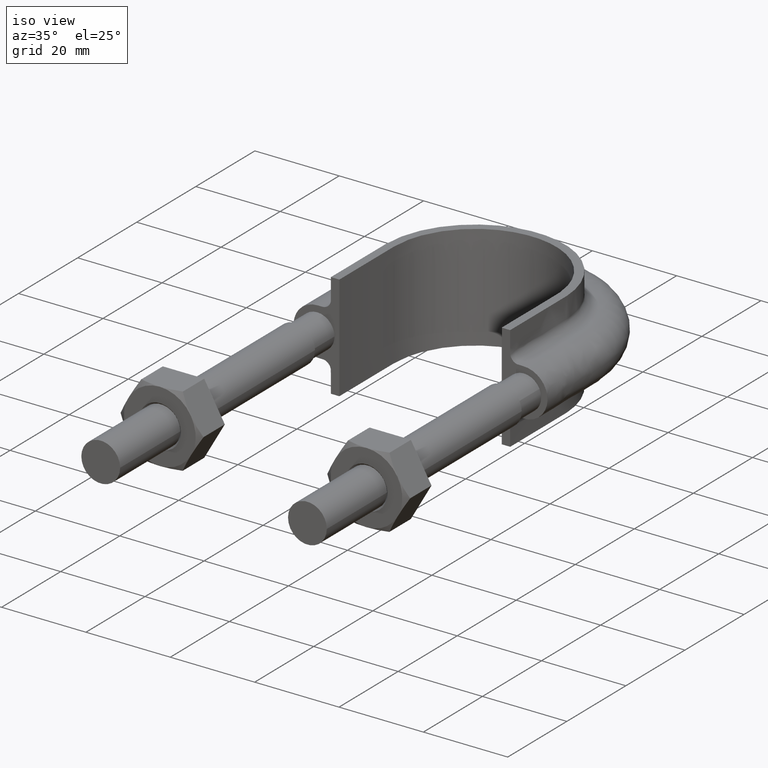
[diagram: clean part render]
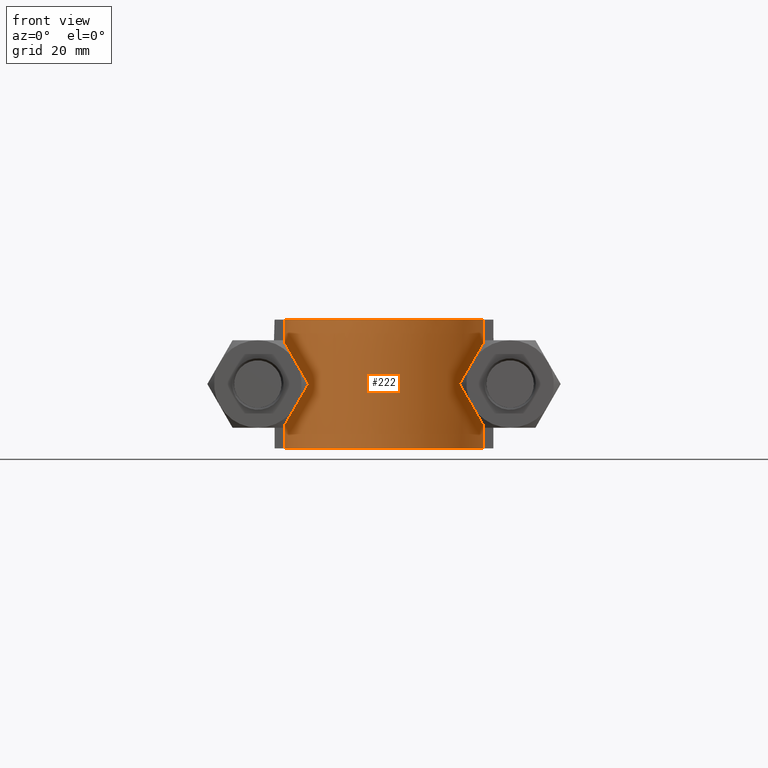
[diagram: tour spotlight — one face highlighted and labeled with its STEP entity id]
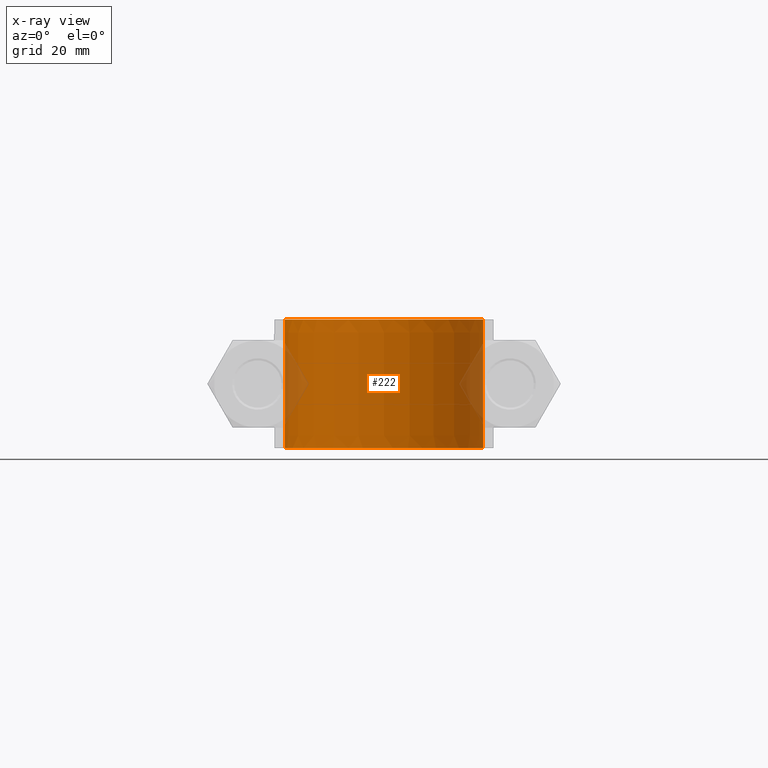
[diagram: x-ray of the same camera — body ghosted, this tour face saturated]
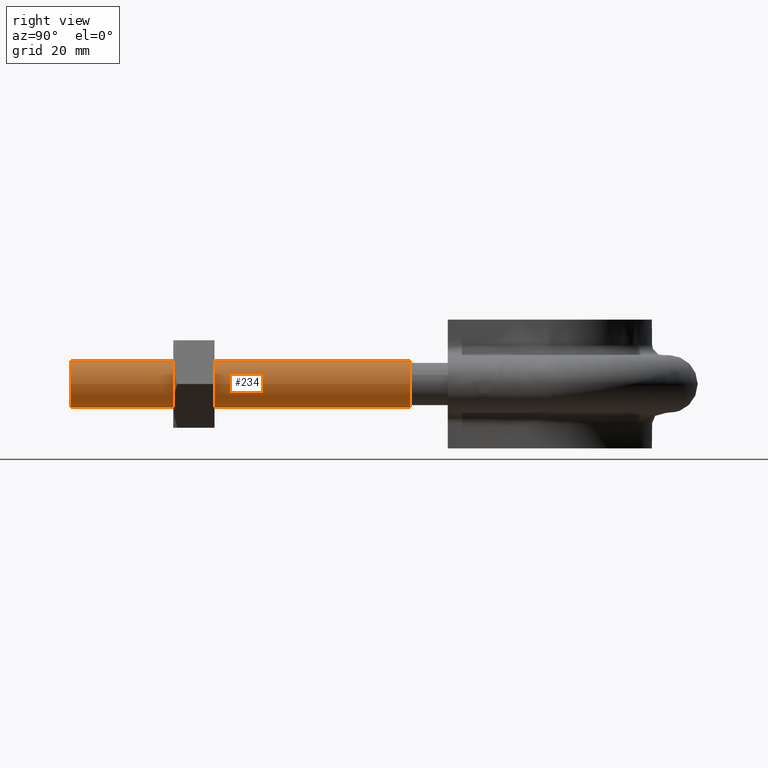
[diagram: tour spotlight — one face highlighted and labeled with its STEP entity id]
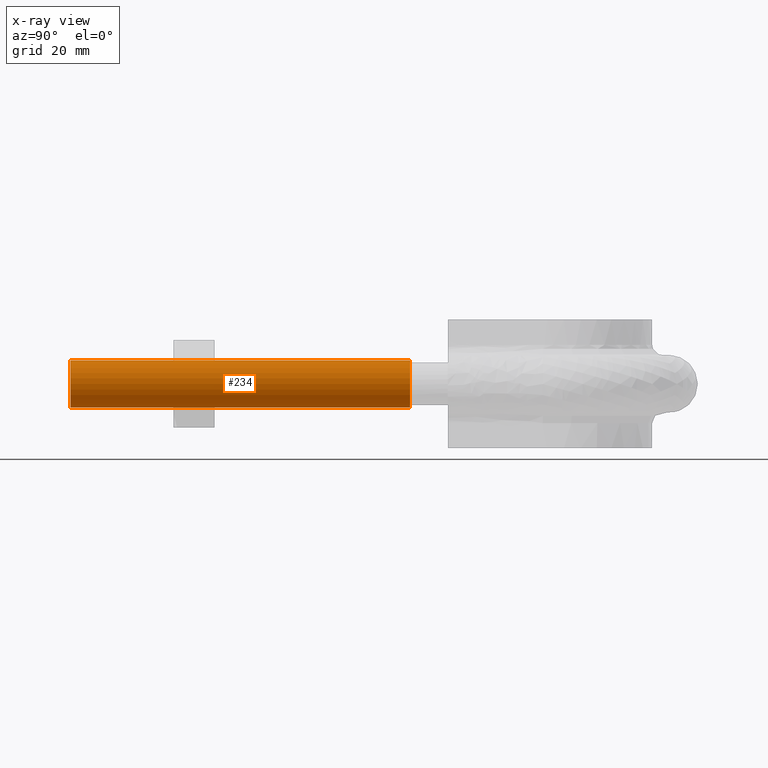
[diagram: x-ray of the same camera — body ghosted, this tour face saturated]
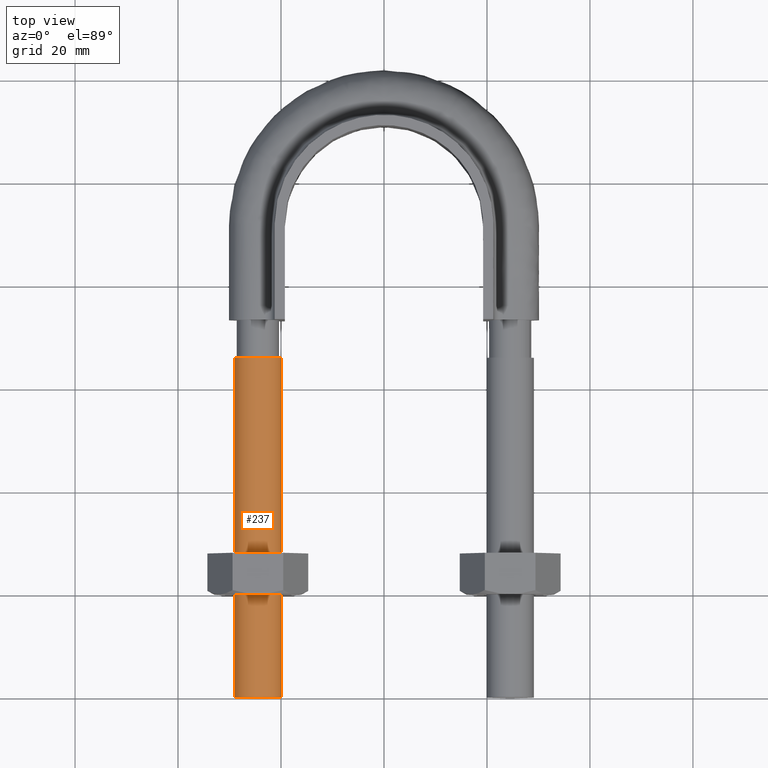
[diagram: tour spotlight — one face highlighted and labeled with its STEP entity id]
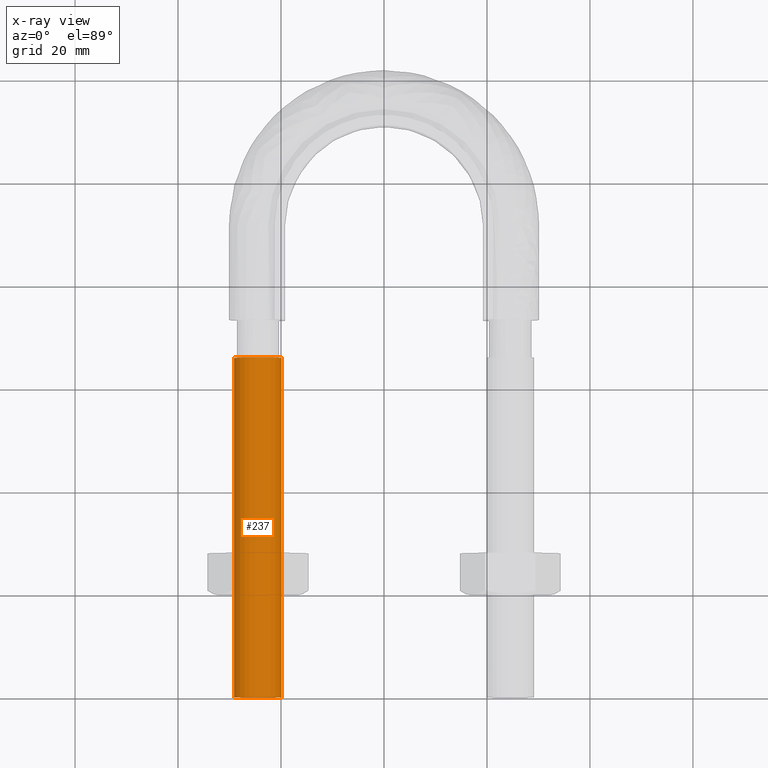
[diagram: x-ray of the same camera — body ghosted, this tour face saturated]
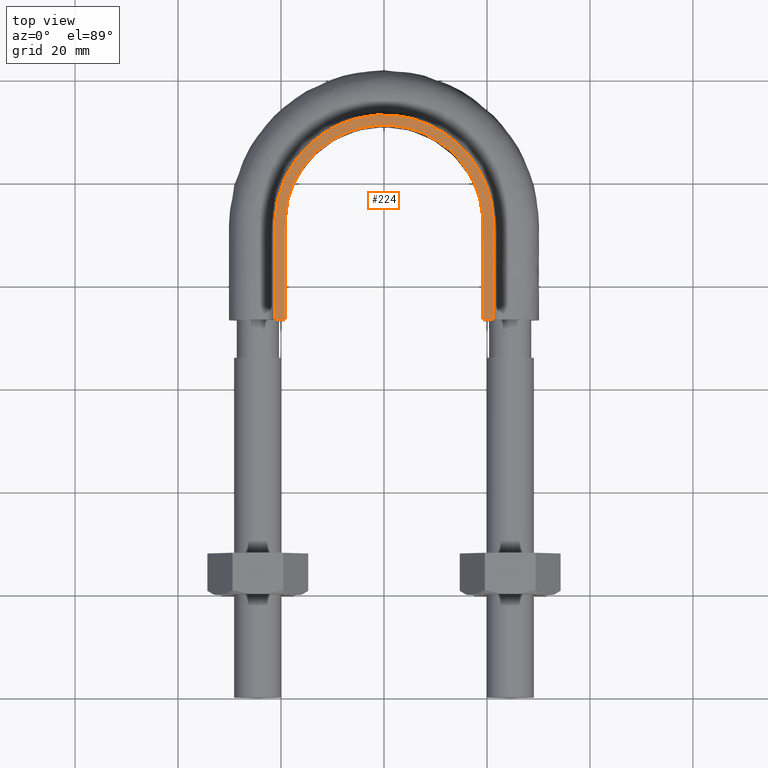
[diagram: tour spotlight — one face highlighted and labeled with its STEP entity id]
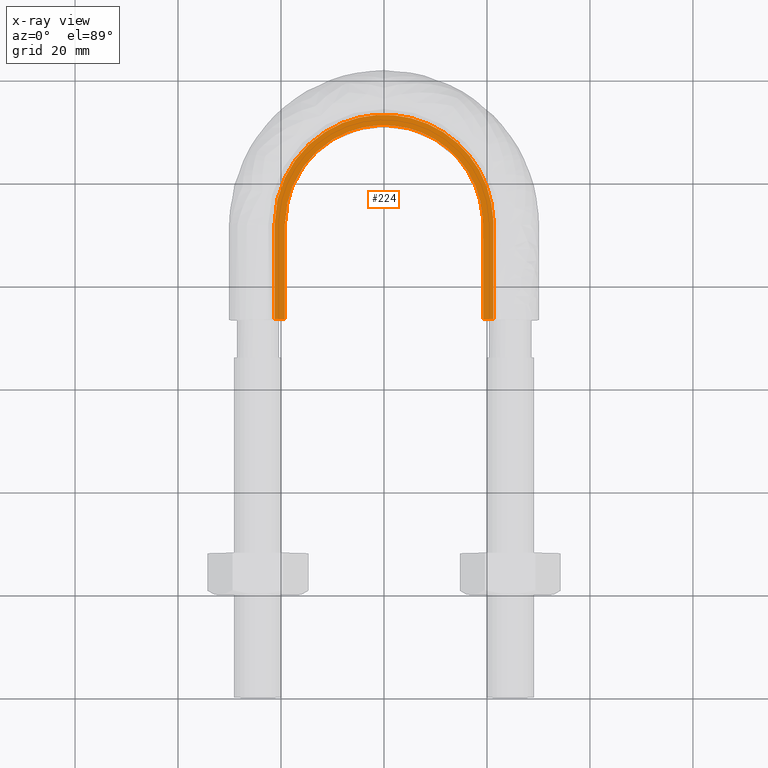
[diagram: x-ray of the same camera — body ghosted, this tour face saturated]
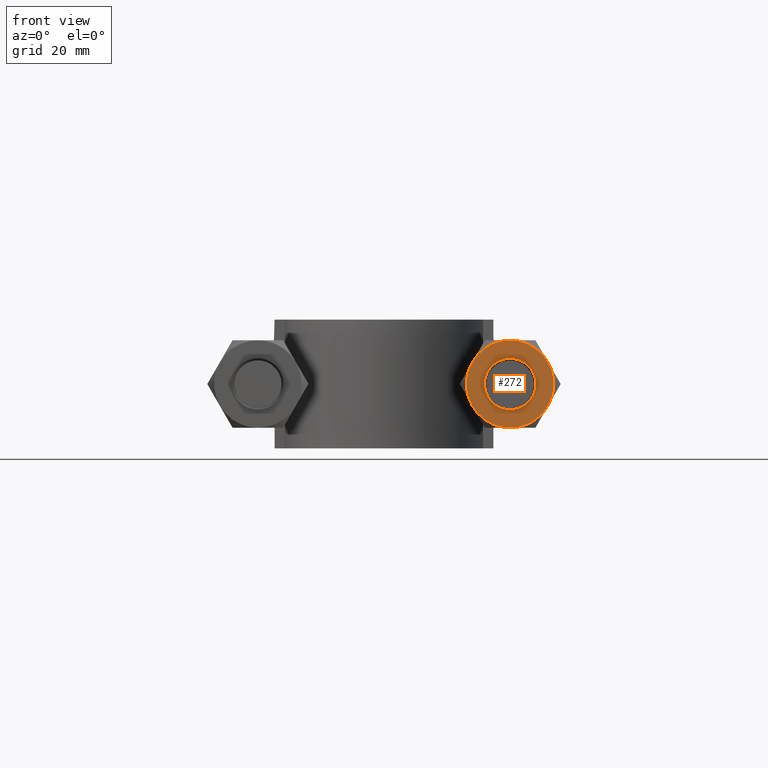
[diagram: tour spotlight — one face highlighted and labeled with its STEP entity id]
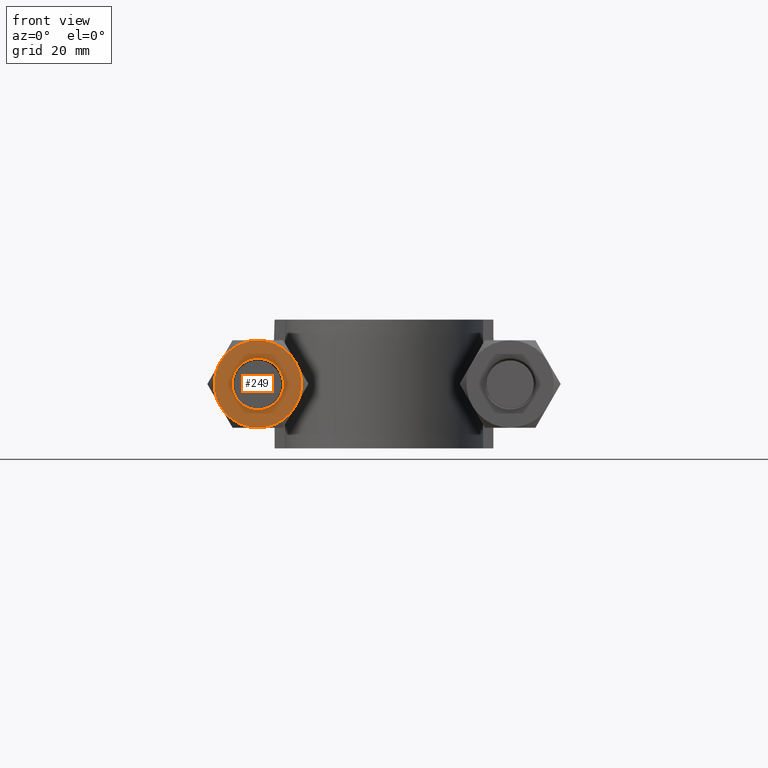
[diagram: tour spotlight — one face highlighted and labeled with its STEP entity id]
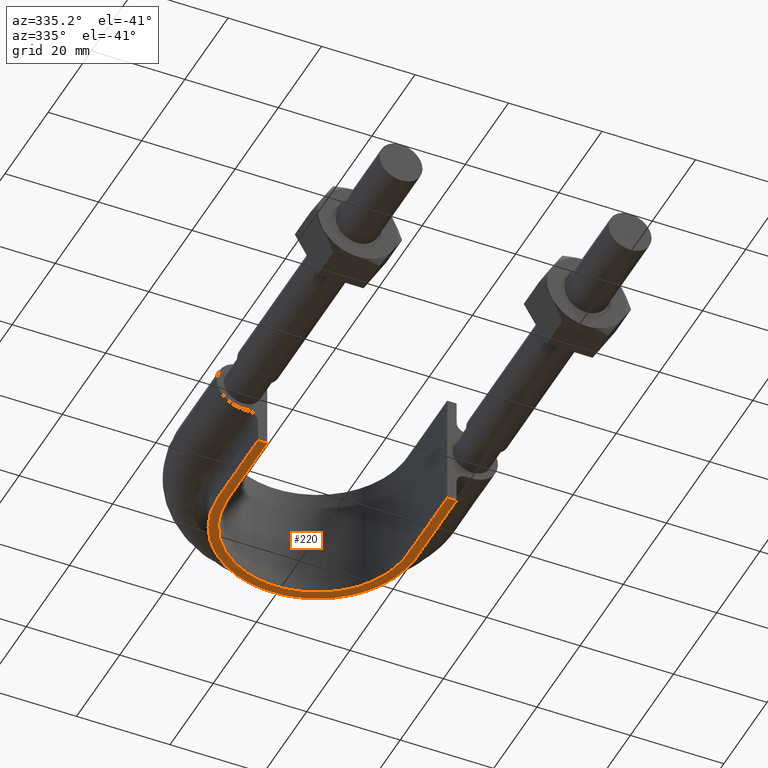
[diagram: tour spotlight — one face highlighted and labeled with its STEP entity id]
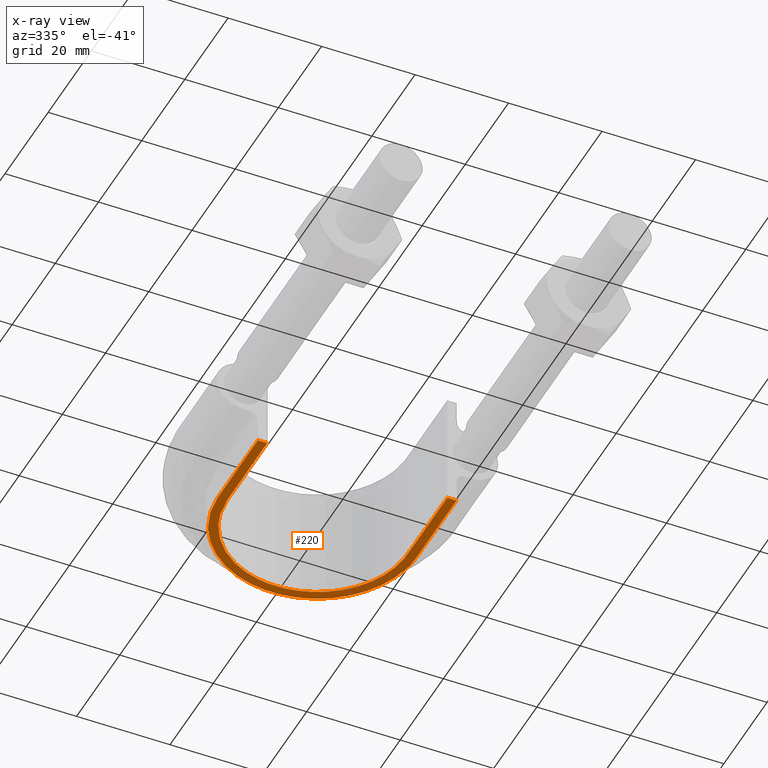
[diagram: x-ray of the same camera — body ghosted, this tour face saturated]
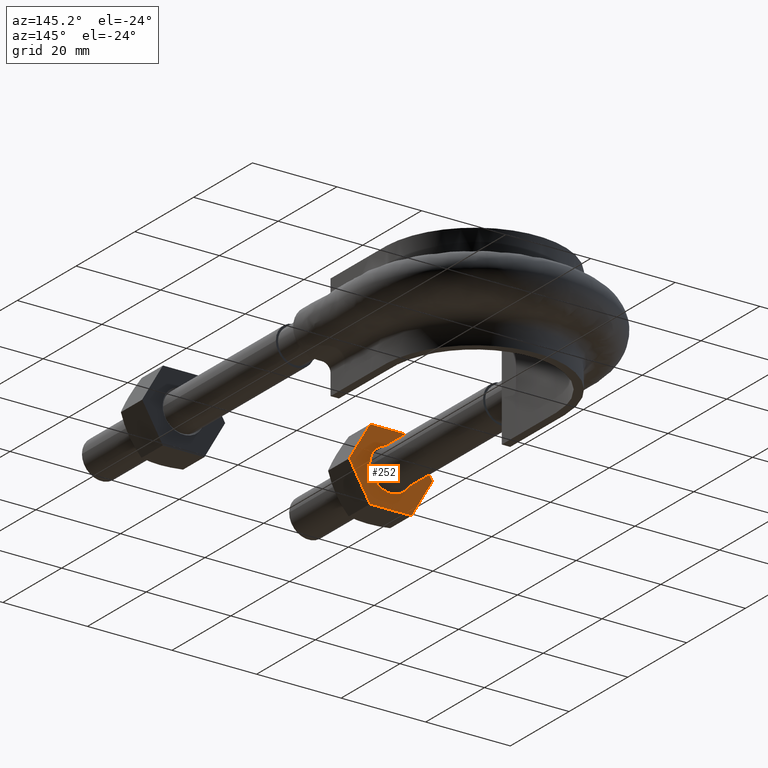
[diagram: tour spotlight — one face highlighted and labeled with its STEP entity id]
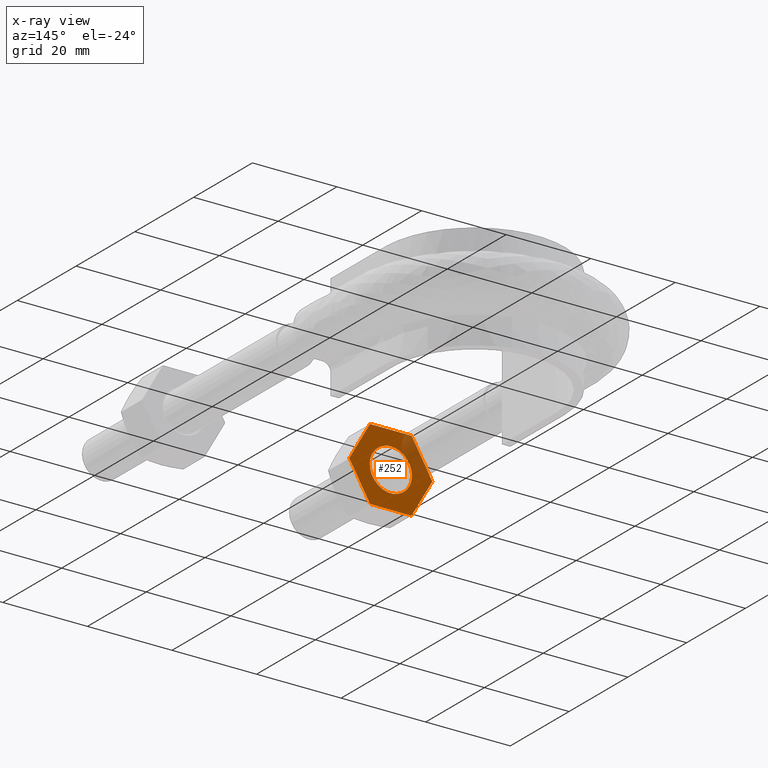
[diagram: x-ray of the same camera — body ghosted, this tour face saturated]
A machine part: a face-by-face anatomy tour. The part has 75 B-rep faces; the first image is the clean iso view, then the 8 largest visible faces are spotlighted one at a time (largest first), each with its STEP entity span.

Face 1 — front view, entity #222. An x-ray twin of the same camera follows (body ghosted, this face saturated) — the face is partly hidden behind the body. In plain terms, the highlighted face is a SurfaceOfExtrusion surface.
Definition (entity closure, byte-faithful):
#222 = ADVANCED_FACE( '', ( #301 ), #302, .T. );
#301 = FACE_OUTER_BOUND( '', #468, .T. );
#302 = SURFACE_OF_LINEAR_EXTRUSION( '', #469, #470 );
#468 = EDGE_LOOP( '', ( #1326, #1327, #1328, #1329 ) );
#469 = B_SPLINE_CURVE_WITH_KNOTS( '', 3, ( #1330, #1331, #1332, #1333, #1334, #1335, #1336, #1337, #1338, #1339, #1340, #1341, #1342, #1343, #1344, #1345, #1346 ), .UNSPECIFIED., .F., .F., ( 4, 3, 1, 1, 1, 1, 1, 1, 1, 3, 4 ), ( 0.145833333333334, 1.00000000000000, 1.50000000000000, 2.00000000000000, 3.00000000000000, 4.00000000000000, 5.00000000000000, 6.00000000000000, 6.50000000000000, 7.00000000000000, 7.85416666666667 ), .UNSPECIFIED. );
#470 = VECTOR( '', #1347, 1000.00000000000 );
#1326 = ORIENTED_EDGE( '', *, *, #1849, .F. );
#1327 = ORIENTED_EDGE( '', *, *, #1839, .F. );
#1328 = ORIENTED_EDGE( '', *, *, #1843, .T. );
#1329 = ORIENTED_EDGE( '', *, *, #1846, .T. );
#1330 = CARTESIAN_POINT( '', ( -19.2500000000000, 73.3000000000000, -75.5077228895521 ) );
#1331 = CARTESIAN_POINT( '', ( -19.2500000000000, 79.4500000000000, -75.5077228895521 ) );
#1332 = CARTESIAN_POINT( '', ( -19.2500000000000, 85.6000000000000, -75.5077228895521 ) );
#1333 = CARTESIAN_POINT( '', ( -19.2500000000000, 91.7500000000000, -75.5077228895521 ) );
#1334 = CARTESIAN_POINT( '', ( -19.2500000000000, 93.4181948830364, -75.5077228895521 ) );
#1335 = CARTESIAN_POINT( '', ( -18.7981512144455, 96.7919070739605, -75.5077228895521 ) );
#1336 = CARTESIAN_POINT( '', ( -16.2221667038791, 103.051582426054, -75.5077228895521 ) );
#1337 = CARTESIAN_POINT( '', ( -10.0745789356171, 109.201222795708, -75.5077228895521 ) );
#1338 = CARTESIAN_POINT( '', ( 1.71727171790563E-014, 111.899388602146, -75.5077228895521 ) );
#1339 = CARTESIAN_POINT( '', ( 10.0745789356171, 109.201222795708, -75.5077228895521 ) );
#1340 = CARTESIAN_POINT( '', ( 16.2221667038791, 103.051582426054, -75.5077228895521 ) );
#1341 = CARTESIAN_POINT( '', ( 18.7981512144455, 96.7919070739605, -75.5077228895521 ) );
#1342 = CARTESIAN_POINT( '', ( 19.2500000000000, 93.4181948830364, -75.5077228895521 ) );
#1343 = CARTESIAN_POINT( '', ( 19.2500000000000, 91.7500000000000, -75.5077228895521 ) );
#1344 = CARTESIAN_POINT( '', ( 19.2500000000000, 85.6000000000000, -75.5077228895521 ) );
#1345 = CARTESIAN_POINT( '', ( 19.2500000000000, 79.4500000000000, -75.5077228895521 ) );
#1346 = CARTESIAN_POINT( '', ( 19.2500000000000, 73.3000000000000, -75.5077228895521 ) );
#1347 = DIRECTION( '', ( 0.000000000000000, 0.000000000000000, 1.00000000000000 ) );
#1839 = EDGE_CURVE( '', #1989, #1990, #1991, .T. );
#1843 = EDGE_CURVE( '', #1989, #1997, #1998, .T. );
#1846 = EDGE_CURVE( '', #1997, #2002, #2003, .T. );
#1849 = EDGE_CURVE( '', #1990, #2002, #2007, .T. );
#1989 = VERTEX_POINT( '', #2235 );
#1990 = VERTEX_POINT( '', #2236 );
#1991 = LINE( '', #2237, #2238 );
#1997 = VERTEX_POINT( '', #2276 );
#1998 = B_SPLINE_CURVE_WITH_KNOTS( '', 3, ( #2277, #2278, #2279, #2280, #2281, #2282, #2283, #2284, #2285, #2286, #2287, #2288, #2289, #2290, #2291, #2292, #2293 ), .UNSPECIFIED., .F., .F., ( 4, 3, 1, 1, 1, 1, 1, 1, 1, 3, 4 ), ( 0.145833333333334, 1.00000000000000, 1.50000000000000, 2.00000000000000, 3.00000000000000, 4.00000000000000, 5.00000000000000, 6.00000000000000, 6.50000000000000, 7.00000000000000, 7.85416666666667 ), .UNSPECIFIED. );
#2002 = VERTEX_POINT( '', #2314 );
#2003 = LINE( '', #2315, #2316 );
#2007 = B_SPLINE_CURVE_WITH_KNOTS( '', 3, ( #2351, #2352, #2353, #2354, #2355, #2356, #2357, #2358, #2359, #2360, #2361, #2362, #2363, #2364, #2365, #2366, #2367 ), .UNSPECIFIED., .F., .F., ( 4, 3, 1, 1, 1, 1, 1, 1, 1, 3, 4 ), ( 0.145833333333334, 1.00000000000000, 1.50000000000000, 2.00000000000000, 3.00000000000000, 4.00000000000000, 5.00000000000000, 6.00000000000000, 6.50000000000000, 7.00000000000000, 7.85416666666667 ), .UNSPECIFIED. );
#2235 = CARTESIAN_POINT( '', ( -19.2500000000000, 73.3000000000001, -12.5000000000000 ) );
#2236 = CARTESIAN_POINT( '', ( -19.2500000000000, 73.3000000000001, 12.5000000000000 ) );
#2237 = CARTESIAN_POINT( '', ( -19.2500000000000, 73.3000000000000, -75.5077228895521 ) );
#2238 = VECTOR( '', #2825, 1000.00000000000 );
#2276 = CARTESIAN_POINT( '', ( 19.2500000000000, 73.3000000000000, -12.5000000000000 ) );
#2277 = CARTESIAN_POINT( '', ( -19.2500000000000, 73.3000000000000, -12.5000000000000 ) );
#2278 = CARTESIAN_POINT( '', ( -19.2500000000000, 79.4500000000000, -12.5000000000000 ) );
#2279 = CARTESIAN_POINT( '', ( -19.2500000000000, 85.6000000000000, -12.5000000000000 ) );
#2280 = CARTESIAN_POINT( '', ( -19.2500000000000, 91.7500000000000, -12.5000000000000 ) );
#2281 = CARTESIAN_POINT( '', ( -19.2500000000000, 93.4181948830364, -12.5000000000000 ) );
#2282 = CARTESIAN_POINT( '', ( -18.7981512144455, 96.7919070739605, -12.5000000000000 ) );
#2283 = CARTESIAN_POINT( '', ( -16.2221667038791, 103.051582426054, -12.5000000000000 ) );
#2284 = CARTESIAN_POINT( '', ( -10.0745789356171, 109.201222795708, -12.5000000000000 ) );
#2285 = CARTESIAN_POINT( '', ( 1.71727171790563E-014, 111.899388602146, -12.5000000000000 ) );
#2286 = CARTESIAN_POINT( '', ( 10.0745789356171, 109.201222795708, -12.5000000000000 ) );
#2287 = CARTESIAN_POINT( '', ( 16.2221667038791, 103.051582426054, -12.5000000000000 ) );
#2288 = CARTESIAN_POINT( '', ( 18.7981512144455, 96.7919070739605, -12.5000000000000 ) );
#2289 = CARTESIAN_POINT( '', ( 19.2500000000000, 93.4181948830364, -12.5000000000000 ) );
#2290 = CARTESIAN_POINT( '', ( 19.2500000000000, 91.7500000000000, -12.5000000000000 ) );
#2291 = CARTESIAN_POINT( '', ( 19.2500000000000, 85.6000000000000, -12.5000000000000 ) );
#2292 = CARTESIAN_POINT( '', ( 19.2500000000000, 79.4500000000000, -12.5000000000000 ) );
#2293 = CARTESIAN_POINT( '', ( 19.2500000000000, 73.3000000000000, -12.5000000000000 ) );
#2314 = CARTESIAN_POINT( '', ( 19.2500000000001, 73.3000000000001, 12.5000000000000 ) );
#2315 = CARTESIAN_POINT( '', ( 19.2500000000000, 73.3000000000000, -75.5077228895521 ) );
#2316 = VECTOR( '', #2829, 1000.00000000000 );
#2351 = CARTESIAN_POINT( '', ( -19.2500000000000, 73.3000000000000, 12.5000000000000 ) );
#2352 = CARTESIAN_POINT( '', ( -19.2500000000000, 79.4500000000000, 12.5000000000000 ) );
#2353 = CARTESIAN_POINT( '', ( -19.2500000000000, 85.6000000000000, 12.5000000000000 ) );
#2354 = CARTESIAN_POINT( '', ( -19.2500000000000, 91.7500000000000, 12.5000000000000 ) );
#2355 = CARTESIAN_POINT( '', ( -19.2500000000000, 93.4181948830364, 12.5000000000000 ) );
#2356 = CARTESIAN_POINT( '', ( -18.7981512144455, 96.7919070739605, 12.5000000000000 ) );
#2357 = CARTESIAN_POINT( '', ( -16.2221667038791, 103.051582426054, 12.5000000000000 ) );
#2358 = CARTESIAN_POINT( '', ( -10.0745789356171, 109.201222795708, 12.5000000000000 ) );
#2359 = CARTESIAN_POINT( '', ( 1.71727171790563E-014, 111.899388602146, 12.5000000000000 ) );
#2360 = CARTESIAN_POINT( '', ( 10.0745789356171, 109.201222795708, 12.5000000000000 ) );
#2361 = CARTESIAN_POINT( '', ( 16.2221667038791, 103.051582426054, 12.5000000000000 ) );
#2362 = CARTESIAN_POINT( '', ( 18.7981512144455, 96.7919070739605, 12.5000000000000 ) );
#2363 = CARTESIAN_POINT( '', ( 19.2500000000000, 93.4181948830364, 12.5000000000000 ) );
#2364 = CARTESIAN_POINT( '', ( 19.2500000000000, 91.7500000000000, 12.5000000000000 ) );
#2365 = CARTESIAN_POINT( '', ( 19.2500000000000, 85.6000000000000, 12.5000000000000 ) );
#2366 = CARTESIAN_POINT( '', ( 19.2500000000000, 79.4500000000000, 12.5000000000000 ) );
#2367 = CARTESIAN_POINT( '', ( 19.2500000000000, 73.3000000000000, 12.5000000000000 ) );
#2825 = DIRECTION( '', ( 0.000000000000000, 0.000000000000000, 1.00000000000000 ) );
#2829 = DIRECTION( '', ( 0.000000000000000, 0.000000000000000, 1.00000000000000 ) );

Face 2 — right view, entity #234. An x-ray twin of the same camera follows (body ghosted, this face saturated) — the face is partly hidden behind the body. In plain terms, the highlighted cylindrical surface (bore or boss wall) has radius 4.6 mm, axis along (0, 1, 0).
Definition (entity closure, byte-faithful):
#234 = ADVANCED_FACE( '', ( #328, #329 ), #330, .T. );
#328 = FACE_OUTER_BOUND( '', #1171, .T. );
#329 = FACE_OUTER_BOUND( '', #1172, .T. );
#330 = CYLINDRICAL_SURFACE( '', #1173, 4.60000000000000 );
#1171 = EDGE_LOOP( '', ( #1425 ) );
#1172 = EDGE_LOOP( '', ( #1426 ) );
#1173 = AXIS2_PLACEMENT_3D( '', #1427, #1428, #1429 );
#1425 = ORIENTED_EDGE( '', *, *, #1881, .T. );
#1426 = ORIENTED_EDGE( '', *, *, #1882, .F. );
#1427 = CARTESIAN_POINT( '', ( 24.5000000000000, 66.0000000000000, 2.02060048380692E-014 ) );
#1428 = DIRECTION( '', ( 2.44921270764475E-016, 1.00000000000000, 3.06151588455594E-016 ) );
#1429 = DIRECTION( '', ( 1.00000000000000, -2.44921270764475E-016, -3.74915180455534E-032 ) );
#1881 = EDGE_CURVE( '', #2055, #2055, #2056, .T. );
#1882 = EDGE_CURVE( '', #2057, #2057, #2058, .T. );
#2055 = VERTEX_POINT( '', #2473 );
#2056 = CIRCLE( '', #2474, 4.60000000000000 );
#2057 = VERTEX_POINT( '', #2475 );
#2058 = CIRCLE( '', #2476, 4.60000000000000 );
#2473 = CARTESIAN_POINT( '', ( 29.1000000000000, 66.0000000000000, 2.02060048380692E-014 ) );
#2474 = AXIS2_PLACEMENT_3D( '', #2879, #2880, #2881 );
#2475 = CARTESIAN_POINT( '', ( 29.1000000000000, -7.12720897924624E-015, -1.09100317512561E-030 ) );
#2476 = AXIS2_PLACEMENT_3D( '', #2882, #2883, #2884 );
#2879 = CARTESIAN_POINT( '', ( 24.5000000000000, 66.0000000000000, 2.02060048380692E-014 ) );
#2880 = DIRECTION( '', ( -2.44921270764475E-016, -1.00000000000000, -3.06151588455594E-016 ) );
#2881 = DIRECTION( '', ( 1.00000000000000, -2.44921270764475E-016, -3.74915180455534E-032 ) );
#2882 = CARTESIAN_POINT( '', ( 24.5000000000000, -6.00057113372965E-015, -9.18542192116060E-031 ) );
#2883 = DIRECTION( '', ( -2.44921270764475E-016, -1.00000000000000, -3.06151588455594E-016 ) );
#2884 = DIRECTION( '', ( 1.00000000000000, -2.44921270764475E-016, -3.74915180455534E-032 ) );

Face 3 — top view, entity #237. An x-ray twin of the same camera follows (body ghosted, this face saturated) — the face is partly hidden behind the body. In plain terms, the highlighted cylindrical surface (bore or boss wall) has radius 4.6 mm, axis along (0, 1, 0).
Definition (entity closure, byte-faithful):
#237 = ADVANCED_FACE( '', ( #336, #337 ), #338, .T. );
#336 = FACE_OUTER_BOUND( '', #1179, .T. );
#337 = FACE_OUTER_BOUND( '', #1180, .T. );
#338 = CYLINDRICAL_SURFACE( '', #1181, 4.60000000000000 );
#1179 = EDGE_LOOP( '', ( #1439 ) );
#1180 = EDGE_LOOP( '', ( #1440 ) );
#1181 = AXIS2_PLACEMENT_3D( '', #1441, #1442, #1443 );
#1439 = ORIENTED_EDGE( '', *, *, #1883, .T. );
#1440 = ORIENTED_EDGE( '', *, *, #1884, .F. );
#1441 = CARTESIAN_POINT( '', ( -24.5000000000000, 66.0000000000000, 2.02060048380692E-014 ) );
#1442 = DIRECTION( '', ( 2.44921270764475E-016, 1.00000000000000, 3.06151588455594E-016 ) );
#1443 = DIRECTION( '', ( 1.00000000000000, -2.44921270764475E-016, -3.74915180455534E-032 ) );
#1883 = EDGE_CURVE( '', #2059, #2059, #2060, .T. );
#1884 = EDGE_CURVE( '', #2061, #2061, #2062, .T. );
#2059 = VERTEX_POINT( '', #2477 );
#2060 = CIRCLE( '', #2478, 4.60000000000000 );
#2061 = VERTEX_POINT( '', #2479 );
#2062 = CIRCLE( '', #2480, 4.60000000000000 );
#2477 = CARTESIAN_POINT( '', ( -19.9000000000000, 66.0000000000000, 2.02060048380692E-014 ) );
#2478 = AXIS2_PLACEMENT_3D( '', #2885, #2886, #2887 );
#2479 = CARTESIAN_POINT( '', ( -19.9000000000000, 4.87393328821306E-015, 7.46081209106513E-031 ) );
#2480 = AXIS2_PLACEMENT_3D( '', #2888, #2889, #2890 );
#2885 = CARTESIAN_POINT( '', ( -24.5000000000000, 66.0000000000000, 2.02060048380692E-014 ) );
#2886 = DIRECTION( '', ( -2.44921270764475E-016, -1.00000000000000, -3.06151588455594E-016 ) );
#2887 = DIRECTION( '', ( 1.00000000000000, -2.44921270764475E-016, -3.74915180455535E-032 ) );
#2888 = CARTESIAN_POINT( '', ( -24.5000000000000, 6.00057113372965E-015, 9.18542192116059E-031 ) );
#2889 = DIRECTION( '', ( -2.44921270764475E-016, -1.00000000000000, -3.06151588455594E-016 ) );
#2890 = DIRECTION( '', ( 1.00000000000000, -2.44921270764475E-016, -3.74915180455535E-032 ) );

Face 4 — top view, entity #224. An x-ray twin of the same camera follows (body ghosted, this face saturated) — the face is partly hidden behind the body. In plain terms, the highlighted planar face has unit normal (0, 0, 1).
Definition (entity closure, byte-faithful):
#224 = ADVANCED_FACE( '', ( #305 ), #306, .T. );
#305 = FACE_OUTER_BOUND( '', #999, .T. );
#306 = PLANE( '', #1000 );
#999 = EDGE_LOOP( '', ( #1352, #1353, #1354, #1355 ) );
#1000 = AXIS2_PLACEMENT_3D( '', #1356, #1357, #1358 );
#1352 = ORIENTED_EDGE( '', *, *, #1840, .T. );
#1353 = ORIENTED_EDGE( '', *, *, #1849, .T. );
#1354 = ORIENTED_EDGE( '', *, *, #1848, .T. );
#1355 = ORIENTED_EDGE( '', *, *, #1850, .T. );
#1356 = CARTESIAN_POINT( '', ( 35.0000000000000, 123.300000000000, 12.5000000000000 ) );
#1357 = DIRECTION( '', ( 0.000000000000000, 0.000000000000000, 1.00000000000000 ) );
#1358 = DIRECTION( '', ( 1.22460635382238E-016, 1.00000000000000, 0.000000000000000 ) );
#1840 = EDGE_CURVE( '', #1992, #1990, #1993, .T. );
#1848 = EDGE_CURVE( '', #2002, #2004, #2006, .T. );
#1849 = EDGE_CURVE( '', #1990, #2002, #2007, .T. );
#1850 = EDGE_CURVE( '', #2004, #1992, #2008, .F. );
#1990 = VERTEX_POINT( '', #2236 );
#1992 = VERTEX_POINT( '', #2239 );
#1993 = LINE( '', #2240, #2241 );
#2002 = VERTEX_POINT( '', #2314 );
#2004 = VERTEX_POINT( '', #2317 );
#2006 = LINE( '', #2349, #2350 );
#2007 = B_SPLINE_CURVE_WITH_KNOTS( '', 3, ( #2351, #2352, #2353, #2354, #2355, #2356, #2357, #2358, #2359, #2360, #2361, #2362, #2363, #2364, #2365, #2366, #2367 ), .UNSPECIFIED., .F., .F., ( 4, 3, 1, 1, 1, 1, 1, 1, 1, 3, 4 ), ( 0.145833333333334, 1.00000000000000, 1.50000000000000, 2.00000000000000, 3.00000000000000, 4.00000000000000, 5.00000000000000, 6.00000000000000, 6.50000000000000, 7.00000000000000, 7.85416666666667 ), .UNSPECIFIED. );
#2008 = B_SPLINE_CURVE_WITH_KNOTS( '', 3, ( #2368, #2369, #2370, #2371, #2372, #2373, #2374, #2375, #2376, #2377, #2378, #2379, #2380, #2381, #2382, #2383, #2384 ), .UNSPECIFIED., .F., .F., ( 4, 3, 1, 1, 1, 1, 1, 1, 1, 3, 4 ), ( 0.145833333333336, 1.00000000000000, 1.50000000000000, 2.00000000000000, 3.00000000000000, 4.00000000000000, 5.00000000000000, 6.00000000000000, 6.50000000000000, 7.00000000000000, 7.85416666666666 ), .UNSPECIFIED. );
#2236 = CARTESIAN_POINT( '', ( -19.2500000000000, 73.3000000000001, 12.5000000000000 ) );
#2239 = CARTESIAN_POINT( '', ( -21.2500000000000, 73.3000000000001, 12.5000000000000 ) );
#2240 = CARTESIAN_POINT( '', ( -35.0000000000000, 73.3000000000001, 12.5000000000000 ) );
#2241 = VECTOR( '', #2826, 1000.00000000000 );
#2314 = CARTESIAN_POINT( '', ( 19.2500000000001, 73.3000000000001, 12.5000000000000 ) );
#2317 = CARTESIAN_POINT( '', ( 21.2500000000001, 73.3000000000001, 12.5000000000000 ) );
#2349 = CARTESIAN_POINT( '', ( -35.0000000000000, 73.3000000000001, 12.5000000000000 ) );
#2350 = VECTOR( '', #2830, 1000.00000000000 );
#2351 = CARTESIAN_POINT( '', ( -19.2500000000000, 73.3000000000000, 12.5000000000000 ) );
#2352 = CARTESIAN_POINT( '', ( -19.2500000000000, 79.4500000000000, 12.5000000000000 ) );
#2353 = CARTESIAN_POINT( '', ( -19.2500000000000, 85.6000000000000, 12.5000000000000 ) );
#2354 = CARTESIAN_POINT( '', ( -19.2500000000000, 91.7500000000000, 12.5000000000000 ) );
#2355 = CARTESIAN_POINT( '', ( -19.2500000000000, 93.4181948830364, 12.5000000000000 ) );
#2356 = CARTESIAN_POINT( '', ( -18.7981512144455, 96.7919070739605, 12.5000000000000 ) );
#2357 = CARTESIAN_POINT( '', ( -16.2221667038791, 103.051582426054, 12.5000000000000 ) );
#2358 = CARTESIAN_POINT( '', ( -10.0745789356171, 109.201222795708, 12.5000000000000 ) );
#2359 = CARTESIAN_POINT( '', ( 1.71727171790563E-014, 111.899388602146, 12.5000000000000 ) );
#2360 = CARTESIAN_POINT( '', ( 10.0745789356171, 109.201222795708, 12.5000000000000 ) );
#2361 = CARTESIAN_POINT( '', ( 16.2221667038791, 103.051582426054, 12.5000000000000 ) );
#2362 = CARTESIAN_POINT( '', ( 18.7981512144455, 96.7919070739605, 12.5000000000000 ) );
#2363 = CARTESIAN_POINT( '', ( 19.2500000000000, 93.4181948830364, 12.5000000000000 ) );
#2364 = CARTESIAN_POINT( '', ( 19.2500000000000, 91.7500000000000, 12.5000000000000 ) );
#2365 = CARTESIAN_POINT( '', ( 19.2500000000000, 85.6000000000000, 12.5000000000000 ) );
#2366 = CARTESIAN_POINT( '', ( 19.2500000000000, 79.4500000000000, 12.5000000000000 ) );
#2367 = CARTESIAN_POINT( '', ( 19.2500000000000, 73.3000000000000, 12.5000000000000 ) );
#2368 = CARTESIAN_POINT( '', ( -21.2500000000000, 73.3000000000001, 12.5000000000000 ) );
#2369 = CARTESIAN_POINT( '', ( -21.2500000000000, 79.4500000000000, 12.5000000000000 ) );
#2370 = CARTESIAN_POINT( '', ( -21.2500000000000, 85.6000000000000, 12.5000000000000 ) );
#2371 = CARTESIAN_POINT( '', ( -21.2500000000000, 91.7500000000000, 12.5000000000000 ) );
#2372 = CARTESIAN_POINT( '', ( -21.2500000000000, 93.5968276779905, 12.5000000000000 ) );
#2373 = CARTESIAN_POINT( '', ( -20.7521371065633, 97.3135873922127, 12.5000000000000 ) );
#2374 = CARTESIAN_POINT( '', ( -17.9070504639151, 104.227019966525, 12.5000000000000 ) );
#2375 = CARTESIAN_POINT( '', ( -11.1214577482373, 111.013883340208, 12.5000000000000 ) );
#2376 = CARTESIAN_POINT( '', ( 1.91638327801740E-014, 113.993058329896, 12.5000000000000 ) );
#2377 = CARTESIAN_POINT( '', ( 11.1214577482374, 111.013883340208, 12.5000000000000 ) );
#2378 = CARTESIAN_POINT( '', ( 17.9070504639151, 104.227019966525, 12.5000000000000 ) );
#2379 = CARTESIAN_POINT( '', ( 20.7521371065634, 97.3135873922127, 12.5000000000000 ) );
#2380 = CARTESIAN_POINT( '', ( 21.2500000000000, 93.5968276779905, 12.5000000000000 ) );
#2381 = CARTESIAN_POINT( '', ( 21.2500000000000, 91.7500000000000, 12.5000000000000 ) );
#2382 = CARTESIAN_POINT( '', ( 21.2500000000000, 85.6000000000000, 12.5000000000000 ) );
#2383 = CARTESIAN_POINT( '', ( 21.2500000000000, 79.4500000000000, 12.5000000000000 ) );
#2384 = CARTESIAN_POINT( '', ( 21.2500000000000, 73.3000000000001, 12.5000000000000 ) );
#2826 = DIRECTION( '', ( 1.00000000000000, -1.22460635382238E-016, 0.000000000000000 ) );
#2830 = DIRECTION( '', ( 1.00000000000000, -1.22460635382238E-016, 0.000000000000000 ) );

Face 5 — front view, entity #272. In plain terms, the highlighted planar face has unit normal (0, 1, 0).
Definition (entity closure, byte-faithful):
#272 = ADVANCED_FACE( '', ( #413, #414 ), #415, .F. );
#413 = FACE_OUTER_BOUND( '', #1256, .T. );
#414 = FACE_BOUND( '', #1257, .T. );
#415 = PLANE( '', #1258 );
#1256 = EDGE_LOOP( '', ( #1673, #1674, #1675, #1676, #1677, #1678 ) );
#1257 = EDGE_LOOP( '', ( #1679 ) );
#1258 = AXIS2_PLACEMENT_3D( '', #1680, #1681, #1682 );
#1673 = ORIENTED_EDGE( '', *, *, #1941, .F. );
#1674 = ORIENTED_EDGE( '', *, *, #1942, .F. );
#1675 = ORIENTED_EDGE( '', *, *, #1943, .F. );
#1676 = ORIENTED_EDGE( '', *, *, #1944, .F. );
#1677 = ORIENTED_EDGE( '', *, *, #1939, .F. );
#1678 = ORIENTED_EDGE( '', *, *, #1945, .F. );
#1679 = ORIENTED_EDGE( '', *, *, #1946, .T. );
#1680 = CARTESIAN_POINT( '', ( 24.5000000000000, 20.0000000000000, 7.44901102606166E-015 ) );
#1681 = DIRECTION( '', ( 2.44921270764475E-016, 1.00000000000000, 3.06151588455594E-016 ) );
#1682 = DIRECTION( '', ( -0.866025403784439, 3.65183836637000E-016, -0.500000000000000 ) );
#1939 = EDGE_CURVE( '', #2152, #2154, #2155, .T. );
#1941 = EDGE_CURVE( '', #2157, #2158, #2159, .T. );
#1942 = EDGE_CURVE( '', #2160, #2157, #2161, .T. );
#1943 = EDGE_CURVE( '', #2162, #2160, #2163, .T. );
#1944 = EDGE_CURVE( '', #2154, #2162, #2164, .T. );
#1945 = EDGE_CURVE( '', #2158, #2152, #2165, .T. );
#1946 = EDGE_CURVE( '', #2166, #2166, #2167, .T. );
#2152 = VERTEX_POINT( '', #2656 );
#2154 = VERTEX_POINT( '', #2663 );
#2155 = CIRCLE( '', #2664, 8.50000000000000 );
#2157 = VERTEX_POINT( '', #2673 );
#2158 = VERTEX_POINT( '', #2674 );
#2159 = CIRCLE( '', #2675, 8.50000000000000 );
#2160 = VERTEX_POINT( '', #2676 );
#2161 = CIRCLE( '', #2677, 8.50000000000000 );
#2162 = VERTEX_POINT( '', #2678 );
#2163 = CIRCLE( '', #2679, 8.50000000000000 );
#2164 = CIRCLE( '', #2680, 8.50000000000000 );
#2165 = CIRCLE( '', #2681, 8.50000000000000 );
#2166 = VERTEX_POINT( '', #2682 );
#2167 = CIRCLE( '', #2683, 5.00000000000000 );
#2656 = CARTESIAN_POINT( '', ( 31.8612159321678, 20.0000000000000, 4.25000000000001 ) );
#2663 = CARTESIAN_POINT( '', ( 31.8612159321678, 20.0000000000000, -4.24999999999999 ) );
#2664 = AXIS2_PLACEMENT_3D( '', #2978, #2979, #2980 );
#2673 = CARTESIAN_POINT( '', ( 17.1387840678323, 20.0000000000000, 4.25000000000001 ) );
#2674 = CARTESIAN_POINT( '', ( 24.5000000000000, 20.0000000000000, 8.50000000000000 ) );
#2675 = AXIS2_PLACEMENT_3D( '', #2981, #2982, #2983 );
#2676 = CARTESIAN_POINT( '', ( 17.1387840678323, 20.0000000000000, -4.24999999999999 ) );
#2677 = AXIS2_PLACEMENT_3D( '', #2984, #2985, #2986 );
#2678 = CARTESIAN_POINT( '', ( 24.5000000000000, 20.0000000000000, -8.49999999999999 ) );
#2679 = AXIS2_PLACEMENT_3D( '', #2987, #2988, #2989 );
#2680 = AXIS2_PLACEMENT_3D( '', #2990, #2991, #2992 );
#2681 = AXIS2_PLACEMENT_3D( '', #2993, #2994, #2995 );
#2682 = CARTESIAN_POINT( '', ( 20.1698729810778, 20.0000000000000, -2.49999999999999 ) );
#2683 = AXIS2_PLACEMENT_3D( '', #2996, #2997, #2998 );
#2978 = CARTESIAN_POINT( '', ( 24.5000000000000, 20.0000000000000, 7.44901102606166E-015 ) );
#2979 = DIRECTION( '', ( 2.44921270764475E-016, 1.00000000000000, 3.06151588455594E-016 ) );
#2980 = DIRECTION( '', ( -0.866025403784439, 3.65183836637000E-016, -0.500000000000000 ) );
#2981 = CARTESIAN_POINT( '', ( 24.5000000000000, 20.0000000000000, 7.44901102606166E-015 ) );
#2982 = DIRECTION( '', ( 2.44921270764475E-016, 1.00000000000000, 3.06151588455594E-016 ) );
#2983 = DIRECTION( '', ( -0.866025403784439, 3.65183836637000E-016, -0.500000000000000 ) );
#2984 = CARTESIAN_POINT( '', ( 24.5000000000000, 20.0000000000000, 7.44901102606166E-015 ) );
#2985 = DIRECTION( '', ( 2.44921270764475E-016, 1.00000000000000, 3.06151588455594E-016 ) );
#2986 = DIRECTION( '', ( -0.866025403784439, 3.65183836637000E-016, -0.500000000000000 ) );
#2987 = CARTESIAN_POINT( '', ( 24.5000000000000, 20.0000000000000, 7.44901102606166E-015 ) );
#2988 = DIRECTION( '', ( 2.44921270764475E-016, 1.00000000000000, 3.06151588455594E-016 ) );
#2989 = DIRECTION( '', ( -0.866025403784439, 3.65183836637000E-016, -0.500000000000000 ) );
#2990 = CARTESIAN_POINT( '', ( 24.5000000000000, 20.0000000000000, 7.44901102606166E-015 ) );
#2991 = DIRECTION( '', ( 2.44921270764475E-016, 1.00000000000000, 3.06151588455594E-016 ) );
#2992 = DIRECTION( '', ( -0.866025403784439, 3.65183836637000E-016, -0.500000000000000 ) );
#2993 = CARTESIAN_POINT( '', ( 24.5000000000000, 20.0000000000000, 7.44901102606166E-015 ) );
#2994 = DIRECTION( '', ( 2.44921270764475E-016, 1.00000000000000, 3.06151588455594E-016 ) );
#2995 = DIRECTION( '', ( -0.866025403784439, 3.65183836637000E-016, -0.500000000000000 ) );
#2996 = CARTESIAN_POINT( '', ( 24.5000000000000, 20.0000000000000, 7.44901102606166E-015 ) );
#2997 = DIRECTION( '', ( 2.44921270764475E-016, 1.00000000000000, 3.06151588455594E-016 ) );
#2998 = DIRECTION( '', ( -0.866025403784439, 3.65183836637000E-016, -0.500000000000000 ) );

Face 6 — front view, entity #249. In plain terms, the highlighted planar face has unit normal (0, 1, 0).
Definition (entity closure, byte-faithful):
#249 = ADVANCED_FACE( '', ( #362, #363 ), #364, .F. );
#362 = FACE_OUTER_BOUND( '', #1205, .T. );
#363 = FACE_BOUND( '', #1206, .T. );
#364 = PLANE( '', #1207 );
#1205 = EDGE_LOOP( '', ( #1500, #1501, #1502, #1503, #1504, #1505 ) );
#1206 = EDGE_LOOP( '', ( #1506 ) );
#1207 = AXIS2_PLACEMENT_3D( '', #1507, #1508, #1509 );
#1500 = ORIENTED_EDGE( '', *, *, #1889, .F. );
#1501 = ORIENTED_EDGE( '', *, *, #1890, .F. );
#1502 = ORIENTED_EDGE( '', *, *, #1891, .F. );
#1503 = ORIENTED_EDGE( '', *, *, #1892, .F. );
#1504 = ORIENTED_EDGE( '', *, *, #1887, .F. );
#1505 = ORIENTED_EDGE( '', *, *, #1893, .F. );
#1506 = ORIENTED_EDGE( '', *, *, #1894, .T. );
#1507 = CARTESIAN_POINT( '', ( -24.5000000000000, 20.0000000000000, 7.44901102606166E-015 ) );
#1508 = DIRECTION( '', ( 2.44921270764475E-016, 1.00000000000000, 3.06151588455594E-016 ) );
#1509 = DIRECTION( '', ( -0.866025403784439, 3.65183836637000E-016, -0.500000000000000 ) );
#1887 = EDGE_CURVE( '', #2066, #2068, #2069, .T. );
#1889 = EDGE_CURVE( '', #2071, #2072, #2073, .T. );
#1890 = EDGE_CURVE( '', #2074, #2071, #2075, .T. );
#1891 = EDGE_CURVE( '', #2076, #2074, #2077, .T. );
#1892 = EDGE_CURVE( '', #2068, #2076, #2078, .T. );
#1893 = EDGE_CURVE( '', #2072, #2066, #2079, .T. );
#1894 = EDGE_CURVE( '', #2080, #2080, #2081, .T. );
#2066 = VERTEX_POINT( '', #2484 );
#2068 = VERTEX_POINT( '', #2491 );
#2069 = CIRCLE( '', #2492, 8.50000000000000 );
#2071 = VERTEX_POINT( '', #2501 );
#2072 = VERTEX_POINT( '', #2502 );
#2073 = CIRCLE( '', #2503, 8.50000000000000 );
#2074 = VERTEX_POINT( '', #2504 );
#2075 = CIRCLE( '', #2505, 8.50000000000000 );
#2076 = VERTEX_POINT( '', #2506 );
#2077 = CIRCLE( '', #2507, 8.50000000000000 );
#2078 = CIRCLE( '', #2508, 8.50000000000000 );
#2079 = CIRCLE( '', #2509, 8.50000000000000 );
#2080 = VERTEX_POINT( '', #2510 );
#2081 = CIRCLE( '', #2511, 5.00000000000000 );
#2484 = CARTESIAN_POINT( '', ( -17.1387840678323, 20.0000000000000, 4.25000000000001 ) );
#2491 = CARTESIAN_POINT( '', ( -17.1387840678323, 20.0000000000000, -4.24999999999999 ) );
#2492 = AXIS2_PLACEMENT_3D( '', #2894, #2895, #2896 );
#2501 = CARTESIAN_POINT( '', ( -31.8612159321677, 20.0000000000000, 4.25000000000001 ) );
#2502 = CARTESIAN_POINT( '', ( -24.5000000000000, 20.0000000000000, 8.50000000000000 ) );
#2503 = AXIS2_PLACEMENT_3D( '', #2897, #2898, #2899 );
#2504 = CARTESIAN_POINT( '', ( -31.8612159321677, 20.0000000000000, -4.24999999999999 ) );
#2505 = AXIS2_PLACEMENT_3D( '', #2900, #2901, #2902 );
#2506 = CARTESIAN_POINT( '', ( -24.5000000000000, 20.0000000000000, -8.49999999999999 ) );
#2507 = AXIS2_PLACEMENT_3D( '', #2903, #2904, #2905 );
#2508 = AXIS2_PLACEMENT_3D( '', #2906, #2907, #2908 );
#2509 = AXIS2_PLACEMENT_3D( '', #2909, #2910, #2911 );
#2510 = CARTESIAN_POINT( '', ( -28.8301270189222, 20.0000000000000, -2.49999999999999 ) );
#2511 = AXIS2_PLACEMENT_3D( '', #2912, #2913, #2914 );
#2894 = CARTESIAN_POINT( '', ( -24.5000000000000, 20.0000000000000, 7.44901102606166E-015 ) );
#2895 = DIRECTION( '', ( 2.44921270764475E-016, 1.00000000000000, 3.06151588455594E-016 ) );
#2896 = DIRECTION( '', ( -0.866025403784439, 3.65183836637000E-016, -0.500000000000000 ) );
#2897 = CARTESIAN_POINT( '', ( -24.5000000000000, 20.0000000000000, 7.44901102606166E-015 ) );
#2898 = DIRECTION( '', ( 2.44921270764475E-016, 1.00000000000000, 3.06151588455594E-016 ) );
#2899 = DIRECTION( '', ( -0.866025403784439, 3.65183836637000E-016, -0.500000000000000 ) );
#2900 = CARTESIAN_POINT( '', ( -24.5000000000000, 20.0000000000000, 7.44901102606166E-015 ) );
#2901 = DIRECTION( '', ( 2.44921270764475E-016, 1.00000000000000, 3.06151588455594E-016 ) );
#2902 = DIRECTION( '', ( -0.866025403784439, 3.65183836637000E-016, -0.500000000000000 ) );
#2903 = CARTESIAN_POINT( '', ( -24.5000000000000, 20.0000000000000, 7.44901102606166E-015 ) );
#2904 = DIRECTION( '', ( 2.44921270764475E-016, 1.00000000000000, 3.06151588455594E-016 ) );
#2905 = DIRECTION( '', ( -0.866025403784439, 3.65183836637000E-016, -0.500000000000000 ) );
#2906 = CARTESIAN_POINT( '', ( -24.5000000000000, 20.0000000000000, 7.44901102606166E-015 ) );
#2907 = DIRECTION( '', ( 2.44921270764475E-016, 1.00000000000000, 3.06151588455594E-016 ) );
#2908 = DIRECTION( '', ( -0.866025403784439, 3.65183836637000E-016, -0.500000000000000 ) );
#2909 = CARTESIAN_POINT( '', ( -24.5000000000000, 20.0000000000000, 7.44901102606166E-015 ) );
#2910 = DIRECTION( '', ( 2.44921270764475E-016, 1.00000000000000, 3.06151588455594E-016 ) );
#2911 = DIRECTION( '', ( -0.866025403784439, 3.65183836637000E-016, -0.500000000000000 ) );
#2912 = CARTESIAN_POINT( '', ( -24.5000000000000, 20.0000000000000, 7.44901102606166E-015 ) );
#2913 = DIRECTION( '', ( 2.44921270764475E-016, 1.00000000000000, 3.06151588455594E-016 ) );
#2914 = DIRECTION( '', ( -0.866025403784439, 3.65183836637000E-016, -0.500000000000000 ) );

Face 7 — auxiliary view, entity #220. An x-ray twin of the same camera follows (body ghosted, this face saturated) — the face is partly hidden behind the body. In plain terms, the highlighted planar face has unit normal (0, 0, 1).
Definition (entity closure, byte-faithful):
#220 = ADVANCED_FACE( '', ( #297 ), #298, .F. );
#297 = FACE_OUTER_BOUND( '', #464, .T. );
#298 = PLANE( '', #465 );
#464 = EDGE_LOOP( '', ( #1312, #1313, #1314, #1315 ) );
#465 = AXIS2_PLACEMENT_3D( '', #1316, #1317, #1318 );
#1312 = ORIENTED_EDGE( '', *, *, #1843, .F. );
#1313 = ORIENTED_EDGE( '', *, *, #1842, .F. );
#1314 = ORIENTED_EDGE( '', *, *, #1844, .T. );
#1315 = ORIENTED_EDGE( '', *, *, #1845, .F. );
#1316 = CARTESIAN_POINT( '', ( 35.0000000000000, 123.300000000000, -12.5000000000000 ) );
#1317 = DIRECTION( '', ( 0.000000000000000, 0.000000000000000, 1.00000000000000 ) );
#1318 = DIRECTION( '', ( 1.22460635382238E-016, 1.00000000000000, 0.000000000000000 ) );
#1842 = EDGE_CURVE( '', #1994, #1989, #1996, .T. );
#1843 = EDGE_CURVE( '', #1989, #1997, #1998, .T. );
#1844 = EDGE_CURVE( '', #1994, #1999, #2000, .T. );
#1845 = EDGE_CURVE( '', #1997, #1999, #2001, .T. );
#1989 = VERTEX_POINT( '', #2235 );
#1994 = VERTEX_POINT( '', #2242 );
#1996 = LINE( '', #2274, #2275 );
#1997 = VERTEX_POINT( '', #2276 );
#1998 = B_SPLINE_CURVE_WITH_KNOTS( '', 3, ( #2277, #2278, #2279, #2280, #2281, #2282, #2283, #2284, #2285, #2286, #2287, #2288, #2289, #2290, #2291, #2292, #2293 ), .UNSPECIFIED., .F., .F., ( 4, 3, 1, 1, 1, 1, 1, 1, 1, 3, 4 ), ( 0.145833333333334, 1.00000000000000, 1.50000000000000, 2.00000000000000, 3.00000000000000, 4.00000000000000, 5.00000000000000, 6.00000000000000, 6.50000000000000, 7.00000000000000, 7.85416666666667 ), .UNSPECIFIED. );
#1999 = VERTEX_POINT( '', #2294 );
#2000 = B_SPLINE_CURVE_WITH_KNOTS( '', 3, ( #2295, #2296, #2297, #2298, #2299, #2300, #2301, #2302, #2303, #2304, #2305, #2306, #2307, #2308, #2309, #2310, #2311 ), .UNSPECIFIED., .F., .F., ( 4, 3, 1, 1, 1, 1, 1, 1, 1, 3, 4 ), ( 0.145833333333336, 1.00000000000000, 1.50000000000000, 2.00000000000000, 3.00000000000000, 4.00000000000000, 5.00000000000000, 6.00000000000000, 6.50000000000000, 7.00000000000000, 7.85416666666666 ), .UNSPECIFIED. );
#2001 = LINE( '', #2312, #2313 );
#2235 = CARTESIAN_POINT( '', ( -19.2500000000000, 73.3000000000001, -12.5000000000000 ) );
#2242 = CARTESIAN_POINT( '', ( -21.2500000000000, 73.3000000000001, -12.5000000000000 ) );
#2274 = CARTESIAN_POINT( '', ( -35.0000000000000, 73.3000000000001, -12.5000000000000 ) );
#2275 = VECTOR( '', #2827, 1000.00000000000 );
#2276 = CARTESIAN_POINT( '', ( 19.2500000000000, 73.3000000000000, -12.5000000000000 ) );
#2277 = CARTESIAN_POINT( '', ( -19.2500000000000, 73.3000000000000, -12.5000000000000 ) );
#2278 = CARTESIAN_POINT( '', ( -19.2500000000000, 79.4500000000000, -12.5000000000000 ) );
#2279 = CARTESIAN_POINT( '', ( -19.2500000000000, 85.6000000000000, -12.5000000000000 ) );
#2280 = CARTESIAN_POINT( '', ( -19.2500000000000, 91.7500000000000, -12.5000000000000 ) );
#2281 = CARTESIAN_POINT( '', ( -19.2500000000000, 93.4181948830364, -12.5000000000000 ) );
#2282 = CARTESIAN_POINT( '', ( -18.7981512144455, 96.7919070739605, -12.5000000000000 ) );
#2283 = CARTESIAN_POINT( '', ( -16.2221667038791, 103.051582426054, -12.5000000000000 ) );
#2284 = CARTESIAN_POINT( '', ( -10.0745789356171, 109.201222795708, -12.5000000000000 ) );
#2285 = CARTESIAN_POINT( '', ( 1.71727171790563E-014, 111.899388602146, -12.5000000000000 ) );
#2286 = CARTESIAN_POINT( '', ( 10.0745789356171, 109.201222795708, -12.5000000000000 ) );
#2287 = CARTESIAN_POINT( '', ( 16.2221667038791, 103.051582426054, -12.5000000000000 ) );
#2288 = CARTESIAN_POINT( '', ( 18.7981512144455, 96.7919070739605, -12.5000000000000 ) );
#2289 = CARTESIAN_POINT( '', ( 19.2500000000000, 93.4181948830364, -12.5000000000000 ) );
#2290 = CARTESIAN_POINT( '', ( 19.2500000000000, 91.7500000000000, -12.5000000000000 ) );
#2291 = CARTESIAN_POINT( '', ( 19.2500000000000, 85.6000000000000, -12.5000000000000 ) );
#2292 = CARTESIAN_POINT( '', ( 19.2500000000000, 79.4500000000000, -12.5000000000000 ) );
#2293 = CARTESIAN_POINT( '', ( 19.2500000000000, 73.3000000000000, -12.5000000000000 ) );
#2294 = CARTESIAN_POINT( '', ( 21.2500000000001, 73.3000000000001, -12.5000000000000 ) );
#2295 = CARTESIAN_POINT( '', ( -21.2500000000000, 73.3000000000000, -12.5000000000000 ) );
#2296 = CARTESIAN_POINT( '', ( -21.2500000000000, 79.4500000000000, -12.5000000000000 ) );
#2297 = CARTESIAN_POINT( '', ( -21.2500000000000, 85.6000000000000, -12.5000000000000 ) );
#2298 = CARTESIAN_POINT( '', ( -21.2500000000000, 91.7500000000000, -12.5000000000000 ) );
#2299 = CARTESIAN_POINT( '', ( -21.2500000000000, 93.5968276779905, -12.5000000000000 ) );
#2300 = CARTESIAN_POINT( '', ( -20.7521371065633, 97.3135873922127, -12.5000000000000 ) );
#2301 = CARTESIAN_POINT( '', ( -17.9070504639151, 104.227019966525, -12.5000000000000 ) );
#2302 = CARTESIAN_POINT( '', ( -11.1214577482373, 111.013883340208, -12.5000000000000 ) );
#2303 = CARTESIAN_POINT( '', ( 2.52353649460928E-014, 113.993058329896, -12.5000000000000 ) );
#2304 = CARTESIAN_POINT( '', ( 11.1214577482374, 111.013883340208, -12.5000000000000 ) );
#2305 = CARTESIAN_POINT( '', ( 17.9070504639151, 104.227019966525, -12.5000000000000 ) );
#2306 = CARTESIAN_POINT( '', ( 20.7521371065634, 97.3135873922127, -12.5000000000000 ) );
#2307 = CARTESIAN_POINT( '', ( 21.2500000000000, 93.5968276779905, -12.5000000000000 ) );
#2308 = CARTESIAN_POINT( '', ( 21.2500000000000, 91.7500000000000, -12.5000000000000 ) );
#2309 = CARTESIAN_POINT( '', ( 21.2500000000000, 85.6000000000000, -12.5000000000000 ) );
#2310 = CARTESIAN_POINT( '', ( 21.2500000000000, 79.4500000000000, -12.5000000000000 ) );
#2311 = CARTESIAN_POINT( '', ( 21.2500000000000, 73.3000000000001, -12.5000000000000 ) );
#2312 = CARTESIAN_POINT( '', ( -35.0000000000000, 73.3000000000001, -12.5000000000000 ) );
#2313 = VECTOR( '', #2828, 1000.00000000000 );
#2827 = DIRECTION( '', ( 1.00000000000000, -1.22460635382238E-016, 0.000000000000000 ) );
#2828 = DIRECTION( '', ( 1.00000000000000, -1.22460635382238E-016, 0.000000000000000 ) );

Face 8 — auxiliary view, entity #252. An x-ray twin of the same camera follows (body ghosted, this face saturated) — the face is partly hidden behind the body. In plain terms, the highlighted planar face has unit normal (-0, -1, -0).
Definition (entity closure, byte-faithful):
#252 = ADVANCED_FACE( '', ( #369, #370 ), #371, .F. );
#369 = FACE_BOUND( '', #1212, .T. );
#370 = FACE_OUTER_BOUND( '', #1213, .T. );
#371 = PLANE( '', #1214 );
#1212 = EDGE_LOOP( '', ( #1525 ) );
#1213 = EDGE_LOOP( '', ( #1526, #1527, #1528, #1529, #1530, #1531, #1532, #1533, #1534, #1535, #1536, #1537 ) );
#1214 = AXIS2_PLACEMENT_3D( '', #1538, #1539, #1540 );
#1525 = ORIENTED_EDGE( '', *, *, #1901, .F. );
#1526 = ORIENTED_EDGE( '', *, *, #1902, .T. );
#1527 = ORIENTED_EDGE( '', *, *, #1903, .T. );
#1528 = ORIENTED_EDGE( '', *, *, #1904, .T. );
#1529 = ORIENTED_EDGE( '', *, *, #1897, .T. );
#1530 = ORIENTED_EDGE( '', *, *, #1905, .T. );
#1531 = ORIENTED_EDGE( '', *, *, #1906, .T. );
#1532 = ORIENTED_EDGE( '', *, *, #1907, .T. );
#1533 = ORIENTED_EDGE( '', *, *, #1908, .T. );
#1534 = ORIENTED_EDGE( '', *, *, #1909, .T. );
#1535 = ORIENTED_EDGE( '', *, *, #1910, .T. );
#1536 = ORIENTED_EDGE( '', *, *, #1911, .T. );
#1537 = ORIENTED_EDGE( '', *, *, #1912, .T. );
#1538 = CARTESIAN_POINT( '', ( -29.4000000000000, 28.0000000000000, 8.48704895708751 ) );
#1539 = DIRECTION( '', ( -2.44921270764475E-016, -1.00000000000000, -3.06151588455594E-016 ) );
#1540 = DIRECTION( '', ( 0.866025403784439, -3.65183836637000E-016, 0.500000000000000 ) );
#1897 = EDGE_CURVE( '', #2086, #2084, #2087, .T. );
#1901 = EDGE_CURVE( '', #2092, #2092, #2093, .T. );
#1902 = EDGE_CURVE( '', #2094, #2095, #2096, .T. );
#1903 = EDGE_CURVE( '', #2095, #2097, #2098, .T. );
#1904 = EDGE_CURVE( '', #2097, #2086, #2099, .T. );
#1905 = EDGE_CURVE( '', #2084, #2100, #2101, .T. );
#1906 = EDGE_CURVE( '', #2100, #2102, #2103, .T. );
#1907 = EDGE_CURVE( '', #2102, #2104, #2105, .T. );
#1908 = EDGE_CURVE( '', #2104, #2106, #2107, .T. );
#1909 = EDGE_CURVE( '', #2106, #2108, #2109, .T. );
#1910 = EDGE_CURVE( '', #2108, #2110, #2111, .T. );
#1911 = EDGE_CURVE( '', #2110, #2112, #2113, .T. );
#1912 = EDGE_CURVE( '', #2112, #2094, #2114, .T. );
#2084 = VERTEX_POINT( '', #2519 );
#2086 = VERTEX_POINT( '', #2522 );
#2087 = LINE( '', #2523, #2524 );
#2092 = VERTEX_POINT( '', #2537 );
#2093 = CIRCLE( '', #2538, 5.00000000000000 );
#2094 = VERTEX_POINT( '', #2539 );
#2095 = VERTEX_POINT( '', #2540 );
#2096 = CIRCLE( '', #2541, 9.80000000000000 );
#2097 = VERTEX_POINT( '', #2542 );
#2098 = LINE( '', #2543, #2544 );
#2099 = CIRCLE( '', #2545, 9.80000000000000 );
#2100 = VERTEX_POINT( '', #2546 );
#2101 = CIRCLE( '', #2547, 9.80000000000000 );
#2102 = VERTEX_POINT( '', #2548 );
#2103 = LINE( '', #2549, #2550 );
#2104 = VERTEX_POINT( '', #2551 );
#2105 = CIRCLE( '', #2552, 9.80000000000000 );
#2106 = VERTEX_POINT( '', #2553 );
#2107 = LINE( '', #2554, #2555 );
#2108 = VERTEX_POINT( '', #2556 );
#2109 = CIRCLE( '', #2557, 9.80000000000000 );
#2110 = VERTEX_POINT( '', #2558 );
#2111 = LINE( '', #2559, #2560 );
#2112 = VERTEX_POINT( '', #2561 );
#2113 = CIRCLE( '', #2562, 9.80000000000000 );
#2114 = LINE( '', #2563, #2564 );
#2519 = CARTESIAN_POINT( '', ( -19.5775337474837, 28.0000000000000, -8.47403835209860 ) );
#2522 = CARTESIAN_POINT( '', ( -14.7000343881808, 28.0000000000000, -0.0259616479013734 ) );
#2523 = CARTESIAN_POINT( '', ( -14.6887840678323, 28.0000000000000, -0.00647552145624212 ) );
#2524 = VECTOR( '', #2916, 999.999999999999 );
#2537 = CARTESIAN_POINT( '', ( -28.8301270189222, 28.0000000000000, -2.49999999999999 ) );
#2538 = AXIS2_PLACEMENT_3D( '', #2921, #2922, #2923 );
#2539 = CARTESIAN_POINT( '', ( -19.6225006406971, 28.0000000000000, 8.50000000000000 ) );
#2540 = CARTESIAN_POINT( '', ( -19.5775337474837, 28.0000000000000, 8.47403835209862 ) );
#2541 = AXIS2_PLACEMENT_3D( '', #2924, #2925, #2926 );
#2542 = CARTESIAN_POINT( '', ( -14.7000343881808, 28.0000000000000, 0.0259616479013906 ) );
#2543 = CARTESIAN_POINT( '', ( -22.0387840678323, 28.0000000000000, 12.7370489570875 ) );
#2544 = VECTOR( '', #2927, 999.999999999999 );
#2545 = AXIS2_PLACEMENT_3D( '', #2928, #2929, #2930 );
#2546 = CARTESIAN_POINT( '', ( -19.6225006406971, 28.0000000000000, -8.49999999999999 ) );
#2547 = AXIS2_PLACEMENT_3D( '', #2931, #2932, #2933 );
#2548 = CARTESIAN_POINT( '', ( -29.3774993593029, 28.0000000000000, -8.49999999999998 ) );
#2549 = CARTESIAN_POINT( '', ( -29.4000000000000, 28.0000000000000, -8.49999999999999 ) );
#2550 = VECTOR( '', #2934, 999.999999999999 );
#2551 = CARTESIAN_POINT( '', ( -29.4224662525163, 28.0000000000000, -8.47403835209860 ) );
#2552 = AXIS2_PLACEMENT_3D( '', #2935, #2936, #2937 );
#2553 = CARTESIAN_POINT( '', ( -34.2999656118192, 28.0000000000000, -0.0259616479013708 ) );
#2554 = CARTESIAN_POINT( '', ( -36.7612159321677, 28.0000000000000, 4.23704895708751 ) );
#2555 = VECTOR( '', #2938, 999.999999999999 );
#2556 = CARTESIAN_POINT( '', ( -34.2999656118192, 28.0000000000000, 0.0259616479013906 ) );
#2557 = AXIS2_PLACEMENT_3D( '', #2939, #2940, #2941 );
#2558 = CARTESIAN_POINT( '', ( -29.4224662525163, 28.0000000000000, 8.47403835209863 ) );
#2559 = CARTESIAN_POINT( '', ( -29.4112159321677, 28.0000000000000, 8.49352447854376 ) );
#2560 = VECTOR( '', #2942, 999.999999999999 );
#2561 = CARTESIAN_POINT( '', ( -29.3774993593029, 28.0000000000000, 8.50000000000001 ) );
#2562 = AXIS2_PLACEMENT_3D( '', #2943, #2944, #2945 );
#2563 = CARTESIAN_POINT( '', ( -29.4000000000000, 28.0000000000000, 8.50000000000001 ) );
#2564 = VECTOR( '', #2946, 999.999999999999 );
#2916 = DIRECTION( '', ( -0.500000000000000, 3.87595688393741E-016, -0.866025403784438 ) );
#2921 = CARTESIAN_POINT( '', ( -24.5000000000000, 28.0000000000000, 9.89822373370642E-015 ) );
#2922 = DIRECTION( '', ( 2.44921270764475E-016, 1.00000000000000, 3.06151588455594E-016 ) );
#2923 = DIRECTION( '', ( -0.866025403784439, 3.65183836637000E-016, -0.500000000000000 ) );
#2924 = CARTESIAN_POINT( '', ( -24.5000000000000, 28.0000000000000, 9.89822373370642E-015 ) );
#2925 = DIRECTION( '', ( 2.44921270764475E-016, 1.00000000000000, 3.06151588455594E-016 ) );
#2926 = DIRECTION( '', ( -0.866025403784439, 3.65183836637000E-016, -0.500000000000000 ) );
#2927 = DIRECTION( '', ( 0.500000000000000, 1.42674417629266E-016, -0.866025403784439 ) );
#2928 = CARTESIAN_POINT( '', ( -24.5000000000000, 28.0000000000000, 9.89822373370642E-015 ) );
#2929 = DIRECTION( '', ( 2.44921270764475E-016, 1.00000000000000, 3.06151588455594E-016 ) );
#2930 = DIRECTION( '', ( -0.866025403784439, 3.65183836637000E-016, -0.500000000000000 ) );
#2931 = CARTESIAN_POINT( '', ( -24.5000000000000, 28.0000000000000, 9.89822373370642E-015 ) );
#2932 = DIRECTION( '', ( 2.44921270764475E-016, 1.00000000000000, 3.06151588455594E-016 ) );
#2933 = DIRECTION( '', ( -0.866025403784439, 3.65183836637000E-016, -0.500000000000000 ) );
#2934 = DIRECTION( '', ( -1.00000000000000, 2.44921270764475E-016, 0.000000000000000 ) );
#2935 = CARTESIAN_POINT( '', ( -24.5000000000000, 28.0000000000000, 9.89822373370642E-015 ) );
#2936 = DIRECTION( '', ( 2.44921270764475E-016, 1.00000000000000, 3.06151588455594E-016 ) );
#2937 = DIRECTION( '', ( -0.866025403784439, 3.65183836637000E-016, -0.500000000000000 ) );
#2938 = DIRECTION( '', ( -0.500000000000000, -1.42674417629266E-016, 0.866025403784439 ) );
#2939 = CARTESIAN_POINT( '', ( -24.5000000000000, 28.0000000000000, 9.89822373370642E-015 ) );
#2940 = DIRECTION( '', ( 2.44921270764475E-016, 1.00000000000000, 3.06151588455594E-016 ) );
#2941 = DIRECTION( '', ( -0.866025403784439, 3.65183836637000E-016, -0.500000000000000 ) );
#2942 = DIRECTION( '', ( 0.500000000000000, -3.87595688393741E-016, 0.866025403784438 ) );
#2943 = CARTESIAN_POINT( '', ( -24.5000000000000, 28.0000000000000, 9.89822373370642E-015 ) );
#2944 = DIRECTION( '', ( 2.44921270764475E-016, 1.00000000000000, 3.06151588455594E-016 ) );
#2945 = DIRECTION( '', ( -0.866025403784439, 3.65183836637000E-016, -0.500000000000000 ) );
#2946 = DIRECTION( '', ( 1.00000000000000, -2.44921270764475E-016, 0.000000000000000 ) );